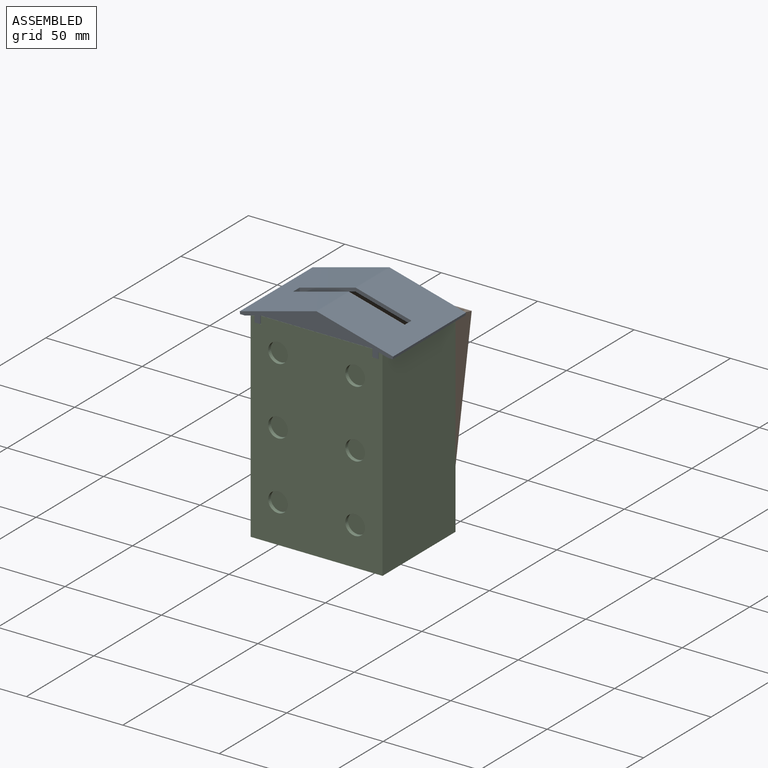
[diagram: assembled view]
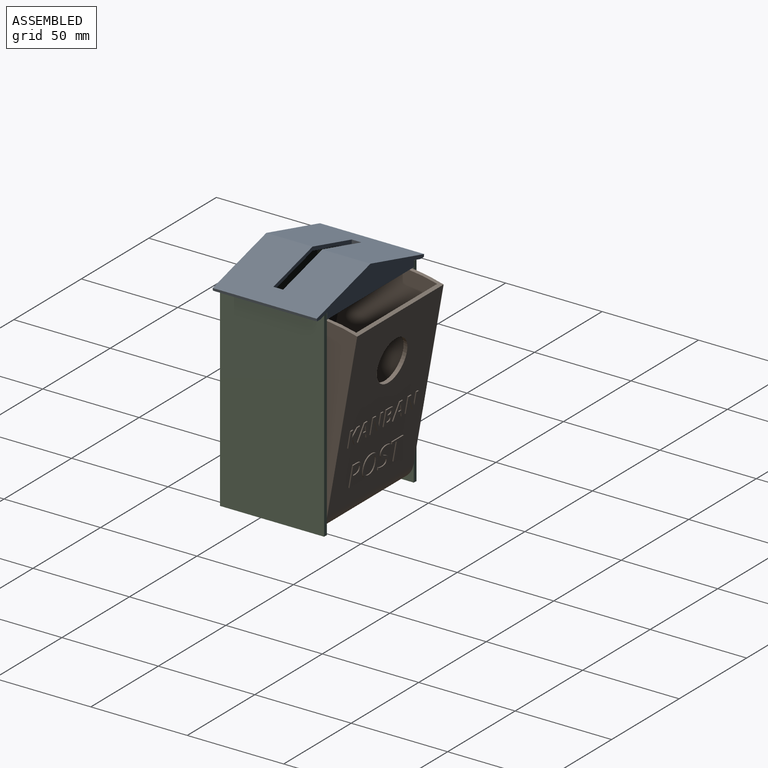
[diagram: assembled view, second angle]
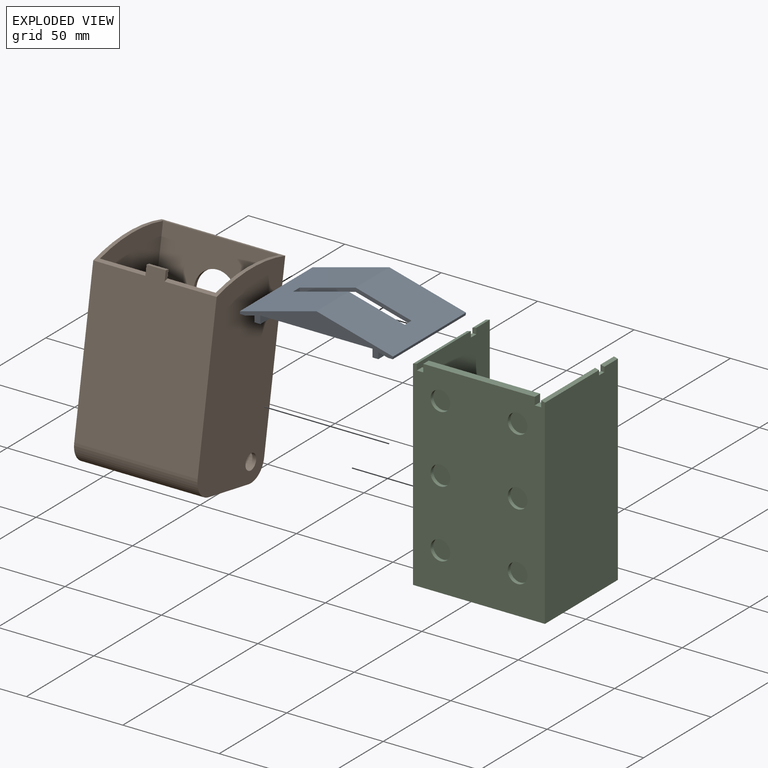
[diagram: exploded view]
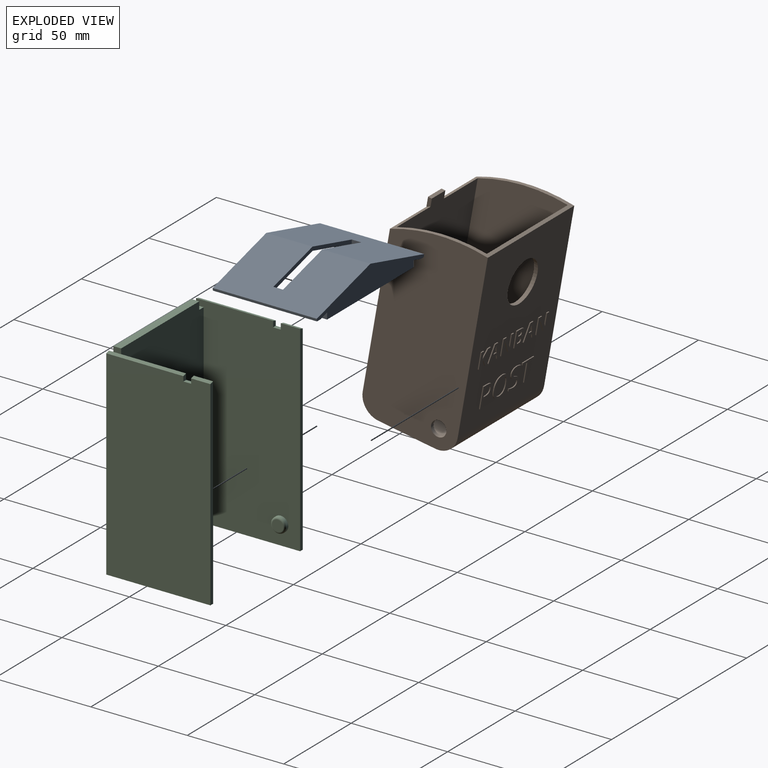
[diagram: exploded view, second angle]
ASSEMBLY  parts=3 mates=3
PART A: 32 faces, bbox 79.5x13.9x54 mm
  f0: plane 10.1x3.3mm, normal (1,0,0), area 33.3mm2, adj f1,f8,f15,f28
  f1: plane 54x5mm, normal (-0.26,-0.97,0), area 271.7mm2, adj f0,f9,f10,f15,f16,f27,f28,f29
  f2: plane 40.1x3.3mm, normal (-1,0,0), area 132.3mm2, adj f3,f8,f16,f24
  f3: plane 54x5mm, normal (0.26,-0.97,0), area 271.7mm2, adj f2,f13,f14,f15,f16,f24,f25,f26
  f4: plane 51x4.1mm, normal (1,0,0), area 209.2mm2, adj f5,f8,f16,f17,f30
  f5: plane 48x29.1mm, normal (0.26,-0.97,0), area 1296mm2, adj f4,f6,f17,f21,f22,f23,f31
  f6: plane 48x29.1mm, normal (-0.26,-0.97,0), area 1296mm2, adj f5,f7,f17,f20,f22,f23,f31
  f7: plane 51x4.1mm, normal (-1,0,0), area 209.2mm2, adj f6,f8,f16,f17,f30
  f8: plane 68.2x54mm, normal (0,-1,0), area 513.8mm2, adj f0,f2,f4,f7,f9,f14,f15,f16
  f9: plane 40.1x3.3mm, normal (1,0,0), area 132.3mm2, adj f1,f8,f16,f27
  f10: plane 54x2.46mm, normal (0,-1,0), area 133.1mm2, adj f1,f15,f16,f18
  f11: plane 54x39.73mm, normal (0.26,0.97,0), area 2071.2mm2, adj f12,f15,f16,f18,f20,f22,f23
  f12: plane 54x39.73mm, normal (-0.26,0.97,0), area 2071.2mm2, adj f11,f15,f16,f19,f21,f22,f23
  f13: plane 54x2.46mm, normal (0,-1,0), area 133.1mm2, adj f3,f15,f16,f19
  f14: plane 10.1x3.3mm, normal (-1,0,0), area 33.3mm2, adj f3,f8,f15,f25
  f15: plane 79.47x13.9mm, normal (0,0,1), area 644.7mm2, adj f0,f1,f3,f8,f10,f11,f12,f13
  f16: plane 79.47x13.9mm, normal (0,0,-1), area 406mm2, adj f1,f2,f3,f4,f7,f8,f9,f10
  f17: plane 58.2x11.9mm, normal (0,0,-1), area 465.7mm2, adj f4,f5,f6,f7,f8
  f18: plane 54x1.29mm, normal (0.99,-0.13,0), area 70.5mm2, adj f10,f11,f15,f16
  f19: plane 54x1.29mm, normal (-0.99,-0.13,0), area 70.5mm2, adj f12,f13,f15,f16
  f20: plane 5x2mm, normal (-1,0,0), area 10mm2, adj f6,f11,f22,f23
  f21: plane 5x2mm, normal (1,0,0), area 10mm2, adj f5,f12,f22,f23
  f22: plane 58x9.77mm, normal (0,0,1), area 116mm2, adj f5,f6,f11,f12,f20,f21
  f23: plane 58x9.77mm, normal (0,0,-1), area 116mm2, adj f5,f6,f11,f12,f20,f21
  f24: plane 3.3x2mm, normal (0,0,-1), area 6.1mm2, adj f2,f3,f8,f26
  f25: plane 3.3x2mm, normal (0,0,1), area 6.1mm2, adj f3,f8,f14,f26
  f26: plane 3.8x2.76mm, normal (-1,0,0), area 10.5mm2, adj f3,f8,f24,f25
  f27: plane 3.3x2mm, normal (0,0,-1), area 6.1mm2, adj f1,f8,f9,f29
  f28: plane 3.3x2mm, normal (0,0,1), area 6.1mm2, adj f0,f1,f8,f29
  f29: plane 3.8x2.76mm, normal (1,0,0), area 10.5mm2, adj f1,f8,f27,f28
  f30: plane 58.2x3mm, normal (0,-1,0), area 174.6mm2, adj f4,f7,f16,f31
  f31: plane 58.2x7.8mm, normal (0,0,1), area 226.9mm2, adj f5,f6,f30
PART B: 191 faces, bbox 64x50.5x100.6 mm
  f0: cylinder r=90.55mm len=64mm, axis (-1,0,0), area 437.2mm2, adj f1,f2,f4,f5,f6,f7,f8,f9
  f1: plane 90x64mm, normal (0,1,0), area 4939mm2, adj f0,f4,f5,f11,f16,f17,f18,f19
  f2: plane 86.24x64mm, normal (0,-1,0), area 5249.4mm2, adj f0,f4,f5,f15,f186,f187,f188
  f3: plane 64x30mm, normal (0,0,-1), area 1920mm2, adj f4,f5,f15,f190
  f4: plane 100.55x50mm, normal (1,0,0), area 4811.2mm2, adj f0,f1,f2,f3,f12,f15,f190
  f5: plane 100.55x50mm, normal (-1,0,0), area 4811.2mm2, adj f0,f1,f2,f3,f13,f15,f190
  f6: plane 98.55x46mm, normal (1,0,0), area 4335.5mm2, adj f0,f7,f9,f10,f13,f14,f189
  f7: plane 84.24x60mm, normal (0,1,0), area 4852.1mm2, adj f0,f6,f8,f14,f186,f187,f188
  f8: plane 98.55x46mm, normal (-1,0,0), area 4335.5mm2, adj f0,f7,f9,f10,f12,f14,f189
  f9: plane 88.2x60mm, normal (0,-1,0), area 4911.9mm2, adj f0,f6,f8,f11,f189
  f10: plane 60x26mm, normal (0,0,1), area 1560mm2, adj f6,f8,f14,f189
  f11: cylinder r=11mm len=22mm, axis (0,1,0), area 138.2mm2, adj f1,f9
  f12: cylinder r=4mm len=8mm, axis (1,0,0), area 50.3mm2, adj f4,f8
  f13: cylinder r=4mm len=8mm, axis (1,0,0), area 50.3mm2, adj f5,f6
  f14: cylinder r=10mm len=60mm, axis (1,0,0), area 942.5mm2, adj f6,f7,f8,f10
  f15: cylinder r=10mm len=64mm, axis (1,0,0), area 1005.3mm2, adj f2,f3,f4,f5
  f16: plane 2.06x0.5mm, normal (0,0,-1), area 1mm2, adj f1,f17,f28,f29
  f17: plane 4.77x3.01mm, normal (-0.85,0,0.53), area 2.8mm2, adj f1,f16,f18,f29
  f18: plane 3.79x2.99mm, normal (-0.79,0,-0.62), area 2.4mm2, adj f1,f17,f19,f29
  f19: plane 2.01x0.5mm, normal (0,0,1), area 1mm2, adj f1,f18,f20,f29
  f20: plane 2.91x2.32mm, normal (0.78,0,0.62), area 1.9mm2, adj f1,f19,f21,f29
  f21: plane 1.01x0.71mm, normal (0.82,0,0.58), area 0.6mm2, adj f1,f20,f22,f29
  f22: plane 3.92x0.5mm, normal (-1,0,0), area 2mm2, adj f1,f21,f23,f29
  f23: plane 1.82x0.5mm, normal (0,0,1), area 0.9mm2, adj f1,f22,f24,f29
  f24: plane 8.56x0.5mm, normal (1,0,0), area 4.3mm2, adj f1,f23,f25,f29
  f25: plane 1.82x0.5mm, normal (0,0,-1), area 0.9mm2, adj f1,f24,f26,f29
  f26: plane 3.05x0.5mm, normal (-1,0,0), area 1.5mm2, adj f1,f25,f27,f29
  f27: plane 0.77x0.55mm, normal (-0.58,0,-0.81), area 0.5mm2, adj f1,f26,f28,f29
  f28: plane 3.61x2.24mm, normal (0.85,0,-0.53), area 2.1mm2, adj f1,f16,f27,f29
  f29: plane 8.56x6.88mm, normal (0,1,0), area 33.6mm2, adj f16,f17,f18,f19,f20,f21,f22,f23
  f30: extruded ~3.13x0.97mm, area 1.6mm2, adj f31,f41,f42,f43
  f31: plane 2.23x0.5mm, normal (0,0,1), area 1.1mm2, adj f30,f32,f42,f43
  f32: extruded ~3.7x1.11mm, area 1.9mm2, adj f31,f41,f42,f43
  f33: plane 2.04x0.62mm, normal (0.96,0,-0.29), area 1.1mm2, adj f1,f34,f40,f42
  f34: plane 1.96x0.5mm, normal (0,0,-1), area 1mm2, adj f1,f33,f35,f42
  f35: plane 8.59x3.03mm, normal (-0.94,0,0.33), area 4.6mm2, adj f1,f34,f36,f42
  f36: plane 2.22x0.5mm, normal (0,0,1), area 1.1mm2, adj f1,f35,f37,f42
  f37: plane 8.59x3.02mm, normal (0.94,0,0.33), area 4.6mm2, adj f1,f36,f38,f42
  f38: plane 1.96x0.5mm, normal (0,0,-1), area 1mm2, adj f1,f37,f39,f42
  f39: plane 2.04x0.62mm, normal (-0.96,0,-0.29), area 1.1mm2, adj f1,f38,f40,f42
  f40: plane 3.12x0.5mm, normal (0,0,-1), area 1.6mm2, adj f1,f33,f39,f42
  f41: extruded ~0.57x0.5mm, area 0.3mm2, adj f30,f32,f42,f43
  f42: plane 8.59x8.27mm, normal (0,1,0), area 33.4mm2, adj f30,f31,f32,f33,f34,f35,f36,f37
  f43: plane 3.7x2.23mm, normal (0,1,0), area 4.1mm2, adj f30,f31,f32,f41
  f44: plane 2.31x0.5mm, normal (0,0,-1), area 1.2mm2, adj f1,f45,f57,f58
  f45: plane 8.56x0.5mm, normal (-1,0,0), area 4.3mm2, adj f1,f44,f46,f58
  f46: plane 1.63x0.5mm, normal (0,0,1), area 0.8mm2, adj f1,f45,f47,f58
  f47: plane 4.05x0.5mm, normal (1,0,0), area 2mm2, adj f1,f46,f48,f58
  f48: extruded ~2.36x0.5mm, area 1.2mm2, adj f1,f47,f49,f58
  f49: plane 0.5x0.04mm, normal (0,0,1), area 0mm2, adj f1,f48,f50,f58
  f50: plane 6.41x3.72mm, normal (-0.87,0,0.5), area 3.7mm2, adj f1,f49,f51,f58
  f51: plane 2.29x0.5mm, normal (0,0,1), area 1.1mm2, adj f1,f50,f52,f58
  f52: plane 8.56x0.5mm, normal (1,0,0), area 4.3mm2, adj f1,f51,f53,f58
  f53: plane 1.62x0.5mm, normal (0,0,-1), area 0.8mm2, adj f1,f52,f54,f58
  f54: plane 4.03x0.5mm, normal (-1,0,0), area 2mm2, adj f1,f53,f55,f58
  f55: extruded ~2.45x0.5mm, area 1.2mm2, adj f1,f54,f56,f58
  f56: plane 0.5x0.05mm, normal (0,0,-1), area 0mm2, adj f1,f55,f57,f58
  f57: plane 6.47x3.72mm, normal (0.87,0,-0.5), area 3.7mm2, adj f1,f44,f56,f58
  f58: plane 8.56x7.59mm, normal (0,1,0), area 41.5mm2, adj f44,f45,f46,f47,f48,f49,f50,f51
  f59: plane 2.23x0.5mm, normal (-1,0,0), area 1.1mm2, adj f60,f83,f84,f86
  f60: plane 1.12x0.5mm, normal (0,0,-1), area 0.6mm2, adj f59,f61,f84,f86
  f61: extruded ~1.52x1.07mm, area 1.1mm2, adj f60,f62,f84,f86
  f62: extruded ~0.88x0.5mm, area 0.5mm2, adj f61,f63,f84,f86
  f63: extruded ~1.11x0.5mm, area 0.6mm2, adj f62,f83,f84,f86
  f64: plane 1.05x0.5mm, normal (0,0,1), area 0.5mm2, adj f65,f81,f84,f85
  f65: plane 1.9x0.5mm, normal (-1,0,0), area 1mm2, adj f64,f66,f84,f85
  f66: plane 0.95x0.5mm, normal (0,0,-1), area 0.5mm2, adj f65,f67,f84,f85
  f67: extruded ~1.14x0.5mm, area 0.6mm2, adj f66,f68,f84,f85
  f68: extruded ~0.71x0.5mm, area 0.4mm2, adj f67,f69,f84,f85
  f69: extruded ~0.75x0.5mm, area 0.4mm2, adj f68,f81,f84,f85
  f70: plane 2.66x0.5mm, normal (0,0,1), area 1.3mm2, adj f1,f71,f82,f84
  f71: plane 8.56x0.5mm, normal (1,0,0), area 4.3mm2, adj f1,f70,f72,f84
  f72: plane 3.2x0.5mm, normal (0,0,-1), area 1.6mm2, adj f1,f71,f73,f84
  f73: extruded ~2.3x0.66mm, area 1.2mm2, adj f1,f72,f74,f84
  f74: extruded ~1.83x0.85mm, area 1mm2, adj f1,f73,f75,f84
  f75: extruded ~1.32x0.5mm, area 0.7mm2, adj f1,f74,f76,f84
  f76: extruded ~1.17x0.68mm, area 0.7mm2, adj f1,f75,f77,f84
  f77: plane 0.5x0.06mm, normal (-1,0,0), area 0mm2, adj f1,f76,f78,f84
  f78: extruded ~0.96x0.59mm, area 0.6mm2, adj f1,f77,f79,f84
  f79: extruded ~1.26x0.5mm, area 0.7mm2, adj f1,f78,f80,f84
  f80: extruded ~1.65x0.82mm, area 1mm2, adj f1,f79,f82,f84
  f81: extruded ~1.07x0.5mm, area 0.6mm2, adj f64,f69,f84,f85
  f82: extruded ~2.64x0.52mm, area 1.4mm2, adj f1,f70,f80,f84
  f83: plane 1.18x0.5mm, normal (0,0,1), area 0.6mm2, adj f59,f63,f84,f86
  f84: plane 8.56x6.35mm, normal (0,1,0), area 39.9mm2, adj f59,f60,f61,f62,f63,f64,f65,f66
  f85: plane 2.45x1.9mm, normal (0,1,0), area 4.2mm2, adj f64,f65,f66,f67,f68,f69,f81
  f86: plane 2.64x2.23mm, normal (0,1,0), area 5.4mm2, adj f59,f60,f61,f62,f63,f83
  f87: extruded ~3.13x0.97mm, area 1.6mm2, adj f88,f98,f99,f100
  f88: plane 2.23x0.5mm, normal (0,0,1), area 1.1mm2, adj f87,f89,f99,f100
  f89: extruded ~3.7x1.11mm, area 1.9mm2, adj f88,f98,f99,f100
  f90: plane 2.04x0.62mm, normal (0.96,0,-0.29), area 1.1mm2, adj f1,f91,f97,f99
  f91: plane 1.96x0.5mm, normal (0,0,-1), area 1mm2, adj f1,f90,f92,f99
  f92: plane 8.59x3.03mm, normal (-0.94,0,0.33), area 4.6mm2, adj f1,f91,f93,f99
  f93: plane 2.22x0.5mm, normal (0,0,1), area 1.1mm2, adj f1,f92,f94,f99
  f94: plane 8.59x3.02mm, normal (0.94,0,0.33), area 4.6mm2, adj f1,f93,f95,f99
  f95: plane 1.96x0.5mm, normal (0,0,-1), area 1mm2, adj f1,f94,f96,f99
  f96: plane 2.04x0.62mm, normal (-0.96,0,-0.29), area 1.1mm2, adj f1,f95,f97,f99
  f97: plane 3.12x0.5mm, normal (0,0,-1), area 1.6mm2, adj f1,f90,f96,f99
  f98: extruded ~0.57x0.5mm, area 0.3mm2, adj f87,f89,f99,f100
  f99: plane 8.59x8.27mm, normal (0,1,0), area 33.4mm2, adj f87,f88,f89,f90,f91,f92,f93,f94
  f100: plane 3.7x2.23mm, normal (0,1,0), area 4.1mm2, adj f87,f88,f89,f98
  f101: plane 2.31x0.5mm, normal (0,0,-1), area 1.2mm2, adj f1,f102,f114,f115
  f102: plane 8.56x0.5mm, normal (-1,0,0), area 4.3mm2, adj f1,f101,f103,f115
  f103: plane 1.63x0.5mm, normal (0,0,1), area 0.8mm2, adj f1,f102,f104,f115
  f104: plane 4.05x0.5mm, normal (1,0,0), area 2mm2, adj f1,f103,f105,f115
  f105: extruded ~2.36x0.5mm, area 1.2mm2, adj f1,f104,f106,f115
  f106: plane 0.5x0.04mm, normal (0,0,1), area 0mm2, adj f1,f105,f107,f115
  f107: plane 6.41x3.72mm, normal (-0.87,0,0.5), area 3.7mm2, adj f1,f106,f108,f115
  f108: plane 2.29x0.5mm, normal (0,0,1), area 1.1mm2, adj f1,f107,f109,f115
  f109: plane 8.56x0.5mm, normal (1,0,0), area 4.3mm2, adj f1,f108,f110,f115
  f110: plane 1.62x0.5mm, normal (0,0,-1), area 0.8mm2, adj f1,f109,f111,f115
  f111: plane 4.03x0.5mm, normal (-1,0,0), area 2mm2, adj f1,f110,f112,f115
  f112: extruded ~2.45x0.5mm, area 1.2mm2, adj f1,f111,f113,f115
  f113: plane 0.5x0.05mm, normal (0,0,-1), area 0mm2, adj f1,f112,f114,f115
  f114: plane 6.47x3.72mm, normal (0.87,0,-0.5), area 3.7mm2, adj f1,f101,f113,f115
  f115: plane 8.56x7.59mm, normal (0,1,0), area 41.5mm2, adj f101,f102,f103,f104,f105,f106,f107,f108
  f116: plane 1.18x0.5mm, normal (0,0,1), area 0.6mm2, adj f117,f130,f131,f132
  f117: plane 4.57x0.5mm, normal (-1,0,0), area 2.3mm2, adj f116,f118,f131,f132
  f118: plane 1.46x0.5mm, normal (0,0,-1), area 0.7mm2, adj f117,f119,f131,f132
  f119: extruded ~2.28x0.55mm, area 1.2mm2, adj f118,f120,f131,f132
  f120: extruded ~1.66x0.73mm, area 0.9mm2, adj f119,f121,f131,f132
  f121: extruded ~1.8x0.78mm, area 1mm2, adj f120,f130,f131,f132
  f122: extruded ~2.63x1.17mm, area 1.5mm2, adj f1,f123,f129,f131
  f123: extruded ~4.22x3.28mm, area 3mm2, adj f1,f122,f124,f131
  f124: plane 2.92x0.5mm, normal (0,0,1), area 1.5mm2, adj f1,f123,f125,f131
  f125: plane 11.25x0.5mm, normal (1,0,0), area 5.6mm2, adj f1,f124,f126,f131
  f126: plane 1.31x0.5mm, normal (0,0,-1), area 0.7mm2, adj f1,f125,f127,f131
  f127: plane 4.42x0.5mm, normal (-1,0,0), area 2.2mm2, adj f1,f126,f128,f131
  f128: plane 1.32x0.5mm, normal (0,0,-1), area 0.7mm2, adj f1,f127,f129,f131
  f129: extruded ~3.34x0.92mm, area 1.8mm2, adj f1,f122,f128,f131
  f130: extruded ~2.52x0.56mm, area 1.3mm2, adj f116,f121,f131,f132
  f131: plane 11.25x7.13mm, normal (0,1,0), area 31.2mm2, adj f116,f117,f118,f119,f120,f121,f122,f123
  f132: plane 4.57x4.47mm, normal (0,1,0), area 18.2mm2, adj f116,f117,f118,f119,f120,f121,f130
  f133: extruded ~3.47x0.97mm, area 1.8mm2, adj f134,f148,f149,f150
  f134: extruded ~3.43x0.97mm, area 1.8mm2, adj f133,f135,f149,f150
  f135: extruded ~2.84x1.18mm, area 1.6mm2, adj f134,f136,f149,f150
  f136: extruded ~2.81x1.17mm, area 1.6mm2, adj f135,f137,f149,f150
  f137: extruded ~3.44x0.95mm, area 1.8mm2, adj f136,f138,f149,f150
  f138: extruded ~3.47x0.95mm, area 1.8mm2, adj f137,f139,f149,f150
  f139: extruded ~2.82x1.18mm, area 1.6mm2, adj f138,f148,f149,f150
  f140: extruded ~4.25x1.37mm, area 2.3mm2, adj f1,f141,f147,f149
  f141: extruded ~4.25x1.36mm, area 2.3mm2, adj f1,f140,f142,f149
  f142: extruded ~3.79x1.54mm, area 2.1mm2, adj f1,f141,f143,f149
  f143: extruded ~3.85x1.51mm, area 2.1mm2, adj f1,f142,f144,f149
  f144: extruded ~4.26x1.35mm, area 2.3mm2, adj f1,f143,f145,f149
  f145: extruded ~4.29x1.35mm, area 2.3mm2, adj f1,f144,f146,f149
  f146: extruded ~3.83x1.52mm, area 2.1mm2, adj f1,f145,f147,f149
  f147: extruded ~3.8x1.55mm, area 2.1mm2, adj f1,f140,f146,f149
  f148: extruded ~2.83x1.18mm, area 1.6mm2, adj f133,f139,f149,f150
  f149: plane 11.58x10.35mm, normal (0,1,0), area 40mm2, adj f133,f134,f135,f136,f137,f138,f139,f140
  f150: plane 9.27x7.58mm, normal (0,1,0), area 58.2mm2, adj f133,f134,f135,f136,f137,f138,f139,f148
  f151: extruded ~2.32x1.08mm, area 1.3mm2, adj f1,f152,f175,f176
  f152: extruded ~1.88x0.66mm, area 1mm2, adj f1,f151,f153,f176
  f153: extruded ~2.44x1.35mm, area 1.4mm2, adj f1,f152,f154,f176
  f154: extruded ~1.57x0.69mm, area 0.9mm2, adj f1,f153,f155,f176
  f155: extruded ~0.73x0.69mm, area 0.5mm2, adj f1,f154,f156,f176
  f156: extruded ~0.96x0.5mm, area 0.5mm2, adj f1,f155,f157,f176
  f157: extruded ~1.24x0.58mm, area 0.7mm2, adj f1,f156,f158,f176
  f158: extruded ~1.62x0.5mm, area 0.9mm2, adj f1,f157,f159,f176
  f159: extruded ~2.71x0.58mm, area 1.4mm2, adj f1,f158,f160,f176
  f160: plane 1.14x0.5mm, normal (-0.94,0,-0.34), area 0.6mm2, adj f1,f159,f161,f176
  f161: extruded ~3.09x0.62mm, area 1.6mm2, adj f1,f160,f162,f176
  f162: extruded ~2.59x0.77mm, area 1.4mm2, adj f1,f161,f163,f176
  f163: extruded ~2.07x0.98mm, area 1.2mm2, adj f1,f162,f164,f176
  f164: extruded ~2.01x0.67mm, area 1.1mm2, adj f1,f163,f165,f176
  f165: extruded ~2.24x1.33mm, area 1.3mm2, adj f1,f164,f166,f176
  f166: extruded ~1.67x0.72mm, area 0.9mm2, adj f1,f165,f167,f176
  f167: extruded ~0.79x0.69mm, area 0.5mm2, adj f1,f166,f168,f176
  f168: extruded ~0.96x0.5mm, area 0.5mm2, adj f1,f167,f169,f176
  f169: extruded ~1.38x0.66mm, area 0.8mm2, adj f1,f168,f170,f176
  f170: extruded ~1.97x0.5mm, area 1mm2, adj f1,f169,f171,f176
  f171: extruded ~1.62x0.5mm, area 0.8mm2, adj f1,f170,f172,f176
  f172: extruded ~1.51x0.5mm, area 0.8mm2, adj f1,f171,f173,f176
  f173: plane 1.26x0.5mm, normal (1,0,0), area 0.6mm2, adj f1,f172,f174,f176
  f174: extruded ~3.08x0.52mm, area 1.6mm2, adj f1,f173,f175,f176
  f175: extruded ~2.92x0.83mm, area 1.5mm2, adj f1,f151,f174,f176
  f176: plane 11.56x7.08mm, normal (0,1,0), area 29.3mm2, adj f151,f152,f153,f154,f155,f156,f157,f158
  f177: plane 1.31x0.5mm, normal (0,0,-1), area 0.7mm2, adj f1,f178,f184,f185
  f178: plane 10.09x0.5mm, normal (-1,0,0), area 5mm2, adj f1,f177,f179,f185
  f179: plane 3.56x0.5mm, normal (0,0,-1), area 1.8mm2, adj f1,f178,f180,f185
  f180: plane 1.16x0.5mm, normal (-1,0,0), area 0.6mm2, adj f1,f179,f181,f185
  f181: plane 8.43x0.5mm, normal (0,0,1), area 4.2mm2, adj f1,f180,f182,f185
  f182: plane 1.16x0.5mm, normal (1,0,0), area 0.6mm2, adj f1,f181,f183,f185
  f183: plane 3.56x0.5mm, normal (0,0,-1), area 1.8mm2, adj f1,f182,f184,f185
  f184: plane 10.09x0.5mm, normal (1,0,0), area 5mm2, adj f1,f177,f183,f185
  f185: plane 11.25x8.43mm, normal (0,1,0), area 23mm2, adj f177,f178,f179,f180,f181,f182,f183,f184
  f186: plane 5x2mm, normal (-1,0,0), area 9mm2, adj f0,f2,f7,f188
  f187: plane 5x2mm, normal (1,0,0), area 9mm2, adj f0,f2,f7,f188
  f188: plane 10x2mm, normal (0,0,1), area 20mm2, adj f2,f7,f186,f187
  f189: cylinder r=10mm len=60mm, axis (-1,0,0), area 942.5mm2, adj f6,f8,f9,f10
  f190: cylinder r=10mm len=64mm, axis (-1,0,0), area 1005.3mm2, adj f1,f3,f4,f5
PART C: 42 faces, bbox 68.4x54x105 mm
  f0: plane 103.66x54mm, normal (1,0,0), area 5587.9mm2, adj f1,f3,f7,f11,f32,f39,f40,f41
  f1: plane 10x2mm, normal (0.26,0,0.97), area 20.7mm2, adj f0,f3,f5,f41
  f2: plane 10x2mm, normal (-0.26,0,0.97), area 20.7mm2, adj f6,f9,f10,f36
  f3: plane 104.2x2mm, normal (0,1,0), area 207.9mm2, adj f0,f1,f5,f11
  f4: plane 57.8x4mm, normal (0,0,1), area 231.2mm2, adj f7,f8,f30,f35
  f5: plane 104.2x54mm, normal (-1,0,0), area 5162.9mm2, adj f1,f3,f7,f8,f11,f12,f31,f32
  f6: plane 104.2x54mm, normal (1,0,0), area 5162.9mm2, adj f2,f7,f8,f9,f11,f14,f33,f34
  f7: plane 105x68.4mm, normal (0,-1,0), area 6661.1mm2, adj f0,f4,f5,f6,f10,f11,f18,f20
  f8: plane 105x64.4mm, normal (0,1,0), area 6735.6mm2, adj f4,f5,f6,f11,f30,f31,f34,f35
  f9: plane 104.2x2mm, normal (0,1,0), area 207.9mm2, adj f2,f6,f10,f11
  f10: plane 103.66x54mm, normal (-1,0,0), area 5587.9mm2, adj f2,f7,f9,f11,f33,f36,f37,f38
  f11: plane 68.4x54mm, normal (0,0,-1), area 473.6mm2, adj f0,f3,f5,f6,f7,f8,f9,f10
  f12: cylinder r=3.9mm len=7.8mm, axis (1,0,0), area 24.5mm2, adj f5,f17
  f13: plane 5.8x5.8mm, normal (-1,0,0), area 26.4mm2, adj f17
  f14: cylinder r=3.9mm len=7.8mm, axis (-1,0,0), area 31.9mm2, adj f6,f16
  f15: plane 5.8x5.8mm, normal (1,0,0), area 26.4mm2, adj f16
  f16: torus R=2.9mm, axis (1,0,0), area 34.9mm2, adj f14,f15
  f17: torus R=2.9mm, axis (-1,0,0), area 34.9mm2, adj f12,f13
  f18: cylinder r=5.1mm len=10.2mm, axis (0,-1,0), area 64.1mm2, adj f7,f19
  f19: plane 10.2x10.2mm, normal (0,-1,0), area 81.7mm2, adj f18
  f20: cylinder r=5.1mm len=10.2mm, axis (0,-1,0), area 64.1mm2, adj f7,f21
  f21: plane 10.2x10.2mm, normal (0,-1,0), area 81.7mm2, adj f20
  f22: cylinder r=5.1mm len=10.2mm, axis (0,-1,0), area 64.1mm2, adj f7,f23
  f23: plane 10.2x10.2mm, normal (0,-1,0), area 81.7mm2, adj f22
  f24: cylinder r=5.1mm len=10.2mm, axis (0,-1,0), area 64.1mm2, adj f7,f25
  f25: plane 10.2x10.2mm, normal (0,-1,0), area 81.7mm2, adj f24
  f26: cylinder r=5.1mm len=10.2mm, axis (0,-1,0), area 64.1mm2, adj f7,f27
  f27: plane 10.2x10.2mm, normal (0,-1,0), area 81.7mm2, adj f26
  f28: cylinder r=5.1mm len=10.2mm, axis (0,-1,0), area 64.1mm2, adj f7,f29
  f29: plane 10.2x10.2mm, normal (0,-1,0), area 81.7mm2, adj f28
  f30: plane 4x4mm, normal (1,0,0), area 16mm2, adj f4,f7,f8,f31
  f31: plane 4x3.3mm, normal (0,0,1), area 13.2mm2, adj f5,f7,f8,f30
  f32: plane 40x2mm, normal (0.26,0,0.97), area 82.8mm2, adj f0,f5,f7,f40
  f33: plane 40x2mm, normal (-0.26,0,0.97), area 82.8mm2, adj f6,f7,f10,f37
  f34: plane 4x3.3mm, normal (0,0,1), area 13.2mm2, adj f6,f7,f8,f35
  f35: plane 4x4mm, normal (-1,0,0), area 16mm2, adj f4,f7,f8,f34
  f36: plane 3.04x2mm, normal (0,-1,0), area 5.5mm2, adj f2,f6,f10,f38
  f37: plane 3.04x2mm, normal (0,1,0), area 5.5mm2, adj f6,f10,f33,f38
  f38: plane 4x2mm, normal (0,0,1), area 8mm2, adj f6,f10,f36,f37
  f39: plane 4x2mm, normal (0,0,1), area 8mm2, adj f0,f5,f40,f41
  f40: plane 3.04x2mm, normal (0,1,0), area 5.5mm2, adj f0,f5,f32,f39
  f41: plane 3.04x2mm, normal (0,-1,0), area 5.5mm2, adj f0,f1,f5,f39
PLACE A rot(axis=(0,0.71,0.71),180deg) t=(22.93,32.02,10.92)mm
PLACE B rot(axis=(-1,0,0),10deg) t=(-9.17,34.89,-87.74)mm
PLACE C t=(23.03,32.02,-94.93)mm
MATE planar C.f6 <-> B.f5  axis (1,0,0) through (-9.17,60.78,-42.44)mm
MATE fastened A.f16 <-> C.f7  axis (0,-1,0) through (-9.17,32.02,7.67)mm
MATE revolute C.f14 <-> B.f0  axis (1,0,0) through (-9.17,76.02,-84.83)mm
